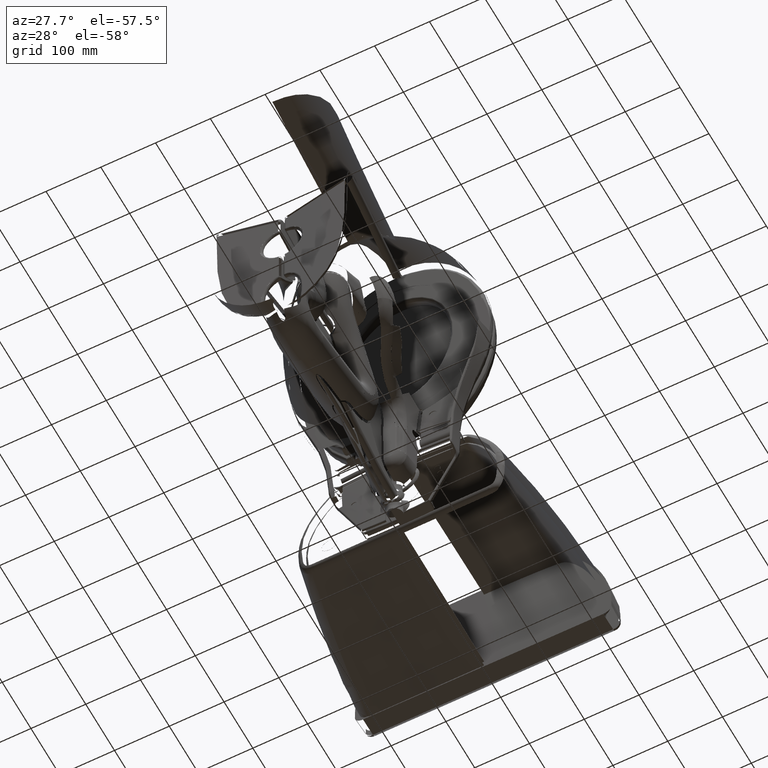
[diagram: clean part render]
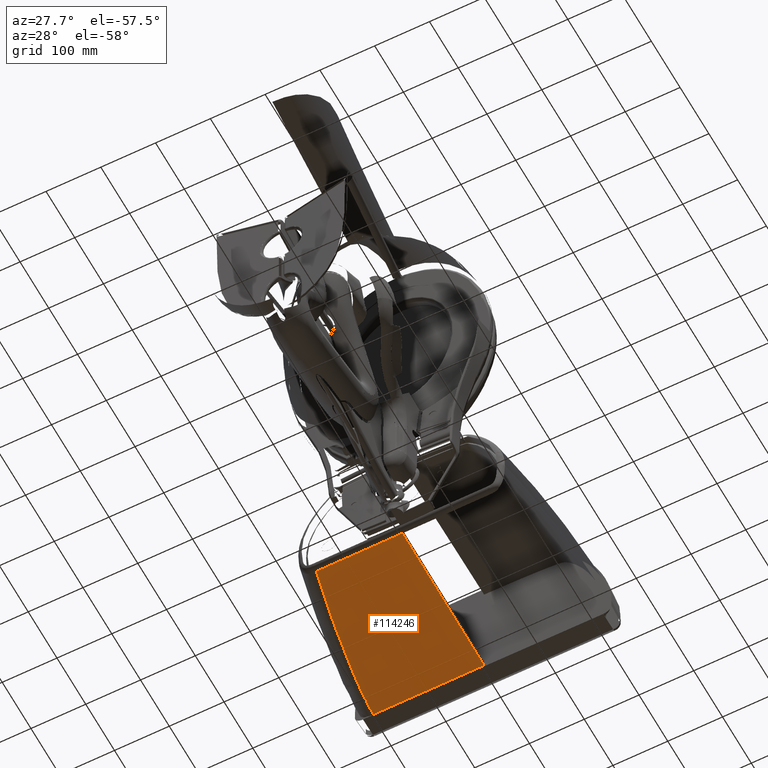
[diagram: same view with one face highlighted and labeled with its STEP entity id]
A machine part, auxiliary view. The second image highlights one B-rep face of the part: STEP entity #114246.
In plain terms, the highlighted face is a freeform B-spline surface patch.
Its self-contained STEP definition (entity closure, byte-faithful):
#1258 = CARTESIAN_POINT ( 'NONE',  ( -5.745885603488186900, 17.00485635692035700, 18.16221895906615200 ) ) ;
#2695 = CARTESIAN_POINT ( 'NONE',  ( -4.445654991937009200, 17.00483263071911800, 18.16228698294134200 ) ) ;
#3825 = CARTESIAN_POINT ( 'NONE',  ( -5.105228740610234800, 17.07958587400570800, 29.51484000306417200 ) ) ;
#4568 = CARTESIAN_POINT ( 'NONE',  ( -7.488457894578740300, 17.04384855036968500, 24.10449703455866200 ) ) ;
#8199 = EDGE_CURVE ( 'NONE', #115956, #52503, #73578, .T. ) ;
#8741 = VERTEX_POINT ( 'NONE', #18257 ) ;
#9297 = CARTESIAN_POINT ( 'NONE',  ( -7.880998421450457600, 17.06432094356663100, 27.23158359039958000 ) ) ;
#9944 = CARTESIAN_POINT ( 'NONE',  ( -6.770797272701595500, 17.02058685008506300, 20.48557013382816900 ) ) ;
#11142 = CARTESIAN_POINT ( 'NONE',  ( -5.745885603488186900, 17.00485635692035700, 18.16221895906615200 ) ) ;
#11219 = CARTESIAN_POINT ( 'NONE',  ( -8.012502503450623000, 17.07451215411894600, 28.76543578697327100 ) ) ;
#11867 = CARTESIAN_POINT ( 'NONE',  ( -7.670968661026520000, 17.05425048130058500, 25.68860870565679700 ) ) ;
#12597 = CARTESIAN_POINT ( 'NONE',  ( -3.765809946722479500, 17.07959623527604600, 29.51510557831523900 ) ) ;
#13129 = CARTESIAN_POINT ( 'NONE',  ( -5.105228740610234800, 17.07958587400570800, 29.51484000306417200 ) ) ;
#13764 = CARTESIAN_POINT ( 'NONE',  ( -5.438289049862201600, 17.07958359629561000, 29.51480895804234100 ) ) ;
#14249 = VERTEX_POINT ( 'NONE', #151566 ) ;
#14979 = CARTESIAN_POINT ( 'NONE',  ( -0.06687896458181102900, 17.06932436836968500, 27.95625287355866500 ) ) ;
#15724 = B_SPLINE_CURVE_WITH_KNOTS ( 'NONE', 3,
 ( #133289, #44619, #89293, #1258 ),
 .UNSPECIFIED., .F., .F.,
 ( 4, 4 ),
 ( 0.0000000000000000000, 1.000000000000000000 ),
 .UNSPECIFIED. ) ;
#16256 = CARTESIAN_POINT ( 'NONE',  ( -6.119923515578739700, 17.06897829236968500, 27.94906626855866300 ) ) ;
#16294 = CARTESIAN_POINT ( 'NONE',  ( -4.015895401200515000, 17.00482054659971000, 18.16228925990966300 ) ) ;
#17570 = CARTESIAN_POINT ( 'NONE',  ( -1.405595544511371000, 17.07961074713720600, 29.51541118164028200 ) ) ;
#18189 = CARTESIAN_POINT ( 'NONE',  ( -0.06687896458181102900, 17.00424887236968600, 18.09459187055866300 ) ) ;
#18257 = CARTESIAN_POINT ( 'NONE',  ( -5.105228740610234800, 17.07958587400570800, 29.51484000306417200 ) ) ;
#18400 = EDGE_CURVE ( 'NONE', #69012, #14249, #21287, .T. ) ;
#18690 = CARTESIAN_POINT ( 'NONE',  ( -6.098528283574805400, 17.07957958035413500, 29.51475757726733200 ) ) ;
#21287 = LINE ( 'NONE', #81353, #185556 ) ;
#24196 = CARTESIAN_POINT ( 'NONE',  ( -7.967707922192993800, 17.06999087537084100, 28.08921161678695800 ) ) ;
#24332 = CARTESIAN_POINT ( 'NONE',  ( -4.445654991937009200, 17.00483263071911800, 18.16228698294134200 ) ) ;
#24838 = CARTESIAN_POINT ( 'NONE',  ( -6.860822002281111900, 17.02358689651700600, 20.94137769674208000 ) ) ;
#25489 = CARTESIAN_POINT ( 'NONE',  ( -7.722945595609787400, 17.05651087891323300, 26.03685371509703100 ) ) ;
#26780 = CARTESIAN_POINT ( 'NONE',  ( -8.002324027528953100, 17.07334226069585300, 28.59089547124802500 ) ) ;
#27261 = EDGE_CURVE ( 'NONE', #131328, #91844, #50407, .T. ) ;
#28210 = EDGE_CURVE ( 'NONE', #8741, #99057, #142887, .T. ) ;
#29262 = CARTESIAN_POINT ( 'NONE',  ( -8.083546532578740300, 17.08004361036968500, 29.58397479555866000 ) ) ;
#30568 = CARTESIAN_POINT ( 'NONE',  ( -4.445654991937009200, 17.00483263071911800, 18.16228698294134200 ) ) ;
#31166 = CARTESIAN_POINT ( 'NONE',  ( -2.195673158581496100, 17.04381863336968600, 24.09178569555866300 ) ) ;
#32178 = ORIENTED_EDGE ( 'NONE', *, *, #82011, .T. ) ;
#32453 = CARTESIAN_POINT ( 'NONE',  ( -4.666479174578740600, 17.00435767336968600, 18.09189344355866400 ) ) ;
#34745 = CARTESIAN_POINT ( 'NONE',  ( -0.2933435966021378200, 17.00469883007757900, 18.16239439562665200 ) ) ;
#35025 = CARTESIAN_POINT ( 'NONE',  ( -5.273638384212601300, 17.00485122795950900, 18.16228501032756200 ) ) ;
#36605 = B_SPLINE_CURVE_WITH_KNOTS ( 'NONE', 3,
 ( #154405, #34745, #64515, #65782, #79385, #109132 ),
 .UNSPECIFIED., .F., .F.,
 ( 4, 2, 4 ),
 ( 0.0000000000000000000, 0.5000000000000000000, 1.000000000000000000 ),
 .UNSPECIFIED. ) ;
#36854 = CARTESIAN_POINT ( 'NONE',  ( -2.843087073148303600, 17.00477741046147900, 18.16233677059043900 ) ) ;
#37204 = B_SPLINE_CURVE_WITH_KNOTS ( 'NONE', 3,
 ( #46715, #120490, #16294, #30568 ),
 .UNSPECIFIED., .F., .F.,
 ( 4, 4 ),
 ( 0.0000000000000000000, 1.000000000000000000 ),
 .UNSPECIFIED. ) ;
#38357 = CARTESIAN_POINT ( 'NONE',  ( -7.077229060704723900, 17.07957670254903000, 29.51496517517442100 ) ) ;
#38782 = ORIENTED_EDGE ( 'NONE', *, *, #155968, .T. ) ;
#39090 = CARTESIAN_POINT ( 'NONE',  ( -7.674015345604384000, 17.05438117825597600, 25.70876332719498700 ) ) ;
#40022 = B_SPLINE_CURVE_WITH_KNOTS ( 'NONE', 3,
 ( #11142, #174177, #44117, #190947 ),
 .UNSPECIFIED., .F., .F.,
 ( 4, 4 ),
 ( 0.0000000000000000000, 1.000000000000000000 ),
 .UNSPECIFIED. ) ;
#40154 = CARTESIAN_POINT ( 'NONE',  ( -7.794624117994501100, 17.07957592509901400, 29.51512801007548200 ) ) ;
#40373 = CARTESIAN_POINT ( 'NONE',  ( -7.851020130192073200, 17.06269802322504200, 26.98438380350198800 ) ) ;
#40623 = CARTESIAN_POINT ( 'NONE',  ( -3.091848441450785000, 17.07960100749484100, 29.51519863416850200 ) ) ;
#44117 = CARTESIAN_POINT ( 'NONE',  ( -6.088016281528912700, 17.00485695559103800, 18.16206620447096000 ) ) ;
#44127 = CARTESIAN_POINT ( 'NONE',  ( -1.068346568581496100, 17.08006836336968700, 29.58450380555866100 ) ) ;
#44619 = CARTESIAN_POINT ( 'NONE',  ( -5.430260298228017900, 17.00485353672793200, 18.16225464713925300 ) ) ;
#45630 = CARTESIAN_POINT ( 'NONE',  ( -0.7351739101441201500, 17.07961189498515600, 29.51532772286060400 ) ) ;
#46715 = CARTESIAN_POINT ( 'NONE',  ( -3.167151420327951200, 17.00478955446312300, 18.16232571350157300 ) ) ;
#50407 = B_SPLINE_CURVE_WITH_KNOTS ( 'NONE', 3,
 ( #69938, #40154, #69292, #114536 ),
 .UNSPECIFIED., .F., .F.,
 ( 4, 4 ),
 ( 1.147597292338376400E-010, 1.000000000000000000 ),
 .UNSPECIFIED. ) ;
#51598 = DIRECTION ( 'NONE',  ( 0.0000000000000000000, -0.006598693453019954100, -0.9999782283853549900 ) ) ;
#51740 = CARTESIAN_POINT ( 'NONE',  ( -1.760245551162832500, 17.00473723970435100, 18.16236994236059100 ) ) ;
#52503 = VERTEX_POINT ( 'NONE', #59905 ) ;
#53253 = EDGE_CURVE ( 'NONE', #191172, #69012, #94937, .T. ) ;
#53361 = CARTESIAN_POINT ( 'NONE',  ( -2.417145245565434800, 17.07960554056090200, 29.51529980931544000 ) ) ;
#55184 = CARTESIAN_POINT ( 'NONE',  ( -0.2339197752306793300, 17.07961160856694600, 29.51519713060268700 ) ) ;
#55261 = CARTESIAN_POINT ( 'NONE',  ( -7.048986121561132000, 17.03012693187788100, 21.94518586502157100 ) ) ;
#55281 = CARTESIAN_POINT ( 'NONE',  ( -3.091848441450785000, 17.07960100749484100, 29.51519863416850200 ) ) ;
#55898 = CARTESIAN_POINT ( 'NONE',  ( -7.673743593173824700, 17.05436951388447400, 25.70696465038243500 ) ) ;
#55953 = ORIENTED_EDGE ( 'NONE', *, *, #79161, .T. ) ;
#56516 = CARTESIAN_POINT ( 'NONE',  ( -6.098528283574805400, 17.07957958035413500, 29.51475757726733200 ) ) ;
#59391 = CARTESIAN_POINT ( 'NONE',  ( -5.745885603488186900, 17.00485635692035700, 18.16221895906615200 ) ) ;
#59851 = EDGE_CURVE ( 'NONE', #14249, #135734, #36605, .T. ) ;
#59905 = CARTESIAN_POINT ( 'NONE',  ( -1.070185196407087600, 17.07961178884449500, 29.51543261489369400 ) ) ;
#60491 = CARTESIAN_POINT ( 'NONE',  ( -5.273638384212601300, 17.00485122795950900, 18.16228501032756200 ) ) ;
#61071 = VERTEX_POINT ( 'NONE', #157425 ) ;
#61185 = CARTESIAN_POINT ( 'NONE',  ( -1.070185196407087600, 17.07961178884449500, 29.51543261489369400 ) ) ;
#63488 = CARTESIAN_POINT ( 'NONE',  ( -0.8360732895814960700, 17.00426009336968400, 18.09451379255866100 ) ) ;
#64515 = CARTESIAN_POINT ( 'NONE',  ( -0.5301177562665987400, 17.00470298104027800, 18.16239371294615200 ) ) ;
#65782 = CARTESIAN_POINT ( 'NONE',  ( -1.022002230284835300, 17.00471437439852500, 18.16238731225961400 ) ) ;
#66164 = CARTESIAN_POINT ( 'NONE',  ( -6.427429914537059500, 17.07957828908893900, 29.51482006251485000 ) ) ;
#68224 = CARTESIAN_POINT ( 'NONE',  ( -7.537566201008713700, 17.04873625330973400, 24.83576600730443200 ) ) ;
#68869 = CARTESIAN_POINT ( 'NONE',  ( -8.034414974880220900, 17.07824002244226200, 29.31847076597005900 ) ) ;
#69012 = VERTEX_POINT ( 'NONE', #165795 ) ;
#69292 = CARTESIAN_POINT ( 'NONE',  ( -7.476043738960561000, 17.07957607031368900, 29.51507194737569900 ) ) ;
#69938 = CARTESIAN_POINT ( 'NONE',  ( -8.037146221495092400, 17.07957570675753100, 29.51512198553970000 ) ) ;
#70159 = CARTESIAN_POINT ( 'NONE',  ( -7.684140703020384300, 17.05481720793212500, 25.77598508775508500 ) ) ;
#70814 = CARTESIAN_POINT ( 'NONE',  ( -7.679633494649087800, 17.05462261583199900, 25.74599052682565400 ) ) ;
#71957 = VERTEX_POINT ( 'NONE', #59391 ) ;
#73439 = CARTESIAN_POINT ( 'NONE',  ( -3.091848441450785000, 17.07960100749484100, 29.51519863416850200 ) ) ;
#73578 = B_SPLINE_CURVE_WITH_KNOTS ( 'NONE', 3,
 ( #122390, #181204, #17570, #77138 ),
 .UNSPECIFIED., .F., .F.,
 ( 4, 4 ),
 ( 0.4911602344710152000, 0.5111401224711341600 ),
 .UNSPECIFIED. ) ;
#74139 = B_SPLINE_CURVE_WITH_KNOTS ( 'NONE', 3,
 ( #55281, #186555, #53361, #143296 ),
 .UNSPECIFIED., .F., .F.,
 ( 4, 4 ),
 ( 0.0000000000000000000, 1.000000000000000000 ),
 .UNSPECIFIED. ) ;
#74554 = CARTESIAN_POINT ( 'NONE',  ( -4.111335315578740400, 17.06913095136968600, 27.95227272855866100 ) ) ;
#75867 = ORIENTED_EDGE ( 'NONE', *, *, #18400, .T. ) ;
#77138 = CARTESIAN_POINT ( 'NONE',  ( -1.070185196407087600, 17.07961178884449500, 29.51543261489369400 ) ) ;
#79138 = CARTESIAN_POINT ( 'NONE',  ( -7.077229060704723900, 17.07957670254903000, 29.51496517517442100 ) ) ;
#79161 = EDGE_CURVE ( 'NONE', #85100, #71957, #15724, .T. ) ;
#79315 = VERTEX_POINT ( 'NONE', #18690 ) ;
#79385 = CARTESIAN_POINT ( 'NONE',  ( -1.276890082345344400, 17.00472161968819100, 18.16238152892350800 ) ) ;
#79969 = EDGE_CURVE ( 'NONE', #52503, #191172, #142646, .T. ) ;
#81353 = CARTESIAN_POINT ( 'NONE',  ( -0.06687896458181102900, 17.04197438686402700, 23.81158604764673100 ) ) ;
#82011 = EDGE_CURVE ( 'NONE', #135734, #61071, #117650, .T. ) ;
#83098 = CARTESIAN_POINT ( 'NONE',  ( -7.147084831177543200, 17.03366637773393300, 22.49319870744890100 ) ) ;
#83740 = CARTESIAN_POINT ( 'NONE',  ( -7.430165758920252600, 17.04446866729238900, 24.17287791457995300 ) ) ;
#84379 = CARTESIAN_POINT ( 'NONE',  ( -7.673934742357254800, 17.05437771840272600, 25.70822981018018200 ) ) ;
#85019 = CARTESIAN_POINT ( 'NONE',  ( -7.703431576096167400, 17.05565412009971400, 25.90494535219764000 ) ) ;
#85077 = CARTESIAN_POINT ( 'NONE',  ( -8.037146221495092400, 17.07957570675753100, 29.51512198553970000 ) ) ;
#85100 = VERTEX_POINT ( 'NONE', #60491 ) ;
#87219 = ORIENTED_EDGE ( 'NONE', *, *, #108232, .T. ) ;
#88162 = CARTESIAN_POINT ( 'NONE',  ( -1.074724558581496200, 17.06931326636968600, 27.95604035455866300 ) ) ;
#88299 = ORIENTED_EDGE ( 'NONE', *, *, #53253, .T. ) ;
#88858 = VERTEX_POINT ( 'NONE', #40623 ) ;
#89293 = CARTESIAN_POINT ( 'NONE',  ( -5.587640161974143800, 17.00485527992682600, 18.16223186679132700 ) ) ;
#89596 = CARTESIAN_POINT ( 'NONE',  ( -4.101598690866140400, 17.07959374279574800, 29.51505663491061800 ) ) ;
#89917 = ORIENTED_EDGE ( 'NONE', *, *, #132789, .T. ) ;
#90055 = CARTESIAN_POINT ( 'NONE',  ( -7.436193634578740100, 17.08004390636968500, 29.58398348955866200 ) ) ;
#91346 = VERTEX_POINT ( 'NONE', #24332 ) ;
#91586 = CARTESIAN_POINT ( 'NONE',  ( -0.5680337445122037900, 17.07961175294178300, 29.51527119183306900 ) ) ;
#91636 = B_SPLINE_CURVE_WITH_KNOTS ( 'NONE', 3,
 ( #79138, #139921, #66164, #95914 ),
 .UNSPECIFIED., .F., .F.,
 ( 4, 4 ),
 ( 0.0000000000000000000, 1.000000000000000000 ),
 .UNSPECIFIED. ) ;
#91844 = VERTEX_POINT ( 'NONE', #38357 ) ;
#91973 = CARTESIAN_POINT ( 'NONE',  ( -0.3232050515818110600, 17.00425177636968500, 18.09459449355866300 ) ) ;
#93270 = CARTESIAN_POINT ( 'NONE',  ( -3.118136645581496500, 17.00432036036968600, 18.09316593455866200 ) ) ;
#94937 = B_SPLINE_CURVE_WITH_KNOTS ( 'NONE', 3,
 ( #144486, #187754, #55184, #188382 ),
 .UNSPECIFIED., .F., .F.,
 ( 4, 4 ),
 ( 0.0000000000000000000, 1.000000000000000000 ),
 .UNSPECIFIED. ) ;
#95914 = CARTESIAN_POINT ( 'NONE',  ( -6.098528283574805400, 17.07957958035413500, 29.51475757726733200 ) ) ;
#96820 = B_SPLINE_CURVE_WITH_KNOTS ( 'NONE', 3,
 ( #56516, #161297, #13764, #13129 ),
 .UNSPECIFIED., .F., .F.,
 ( 4, 4 ),
 ( 0.0000000000000000000, 1.000000000000000000 ),
 .UNSPECIFIED. ) ;
#97997 = CARTESIAN_POINT ( 'NONE',  ( -7.673928544616647000, 17.05437745237240700, 25.70818878766844800 ) ) ;
#98529 = ORIENTED_EDGE ( 'NONE', *, *, #113335, .T. ) ;
#98628 = CARTESIAN_POINT ( 'NONE',  ( -6.260723287990726900, 17.00485596758765500, 18.16200997239452500 ) ) ;
#99057 = VERTEX_POINT ( 'NONE', #89596 ) ;
#99268 = CARTESIAN_POINT ( 'NONE',  ( -7.794862723375751500, 17.05983925338554400, 26.54770930194519700 ) ) ;
#99904 = CARTESIAN_POINT ( 'NONE',  ( -7.939319878855859400, 17.06796741130802500, 27.78399859972491000 ) ) ;
#102061 = ORIENTED_EDGE ( 'NONE', *, *, #28210, .T. ) ;
#103022 = CARTESIAN_POINT ( 'NONE',  ( -8.066921905578741600, 17.06891690436968600, 27.94769209755865800 ) ) ;
#104925 = CARTESIAN_POINT ( 'NONE',  ( -0.4028728975814960800, 17.06932474136968400, 27.95626708855866500 ) ) ;
#105161 = ORIENTED_EDGE ( 'NONE', *, *, #168670, .T. ) ;
#106193 = CARTESIAN_POINT ( 'NONE',  ( -6.842699278578740200, 17.04384698836968700, 24.10388224555866500 ) ) ;
#106840 = CARTESIAN_POINT ( 'NONE',  ( -5.579418084578740900, 17.04384152636968600, 24.10136946955866200 ) ) ;
#106995 = B_SPLINE_SURFACE_WITH_KNOTS ( 'NONE', 3, 3, ( 
 ( #163142, #132154, #44127, #161883, #163775, #176735, #90055, #29262 ),
 ( #14979, #104925, #88162, #118537, #74554, #16256, #119803, #103022 ),
 ( #132785, #133420, #162522, #31166, #177358, #106840, #106193, #4568 ),
 ( #136623, #179908, #181189, #108118, #137262, #137899, #152125, #150213 ),
 ( #18189, #91973, #63488, #166957, #93270, #32453, #135983, #179270 ) ),
 .UNSPECIFIED., .F., .F., .F.,
 ( 4, 1, 4 ),
 ( 4, 1, 1, 1, 1, 4 ),
 ( 0.008759419863361999100, 0.4161931364479999900, 0.9727641616019999700 ),
 ( 0.3703211415280000000, 0.3903010297819999900, 0.4102809180370000100, 0.4502406945460000200, 0.4902004710540000000, 0.5311200109429999900 ),
 .UNSPECIFIED. ) ;
#108118 = CARTESIAN_POINT ( 'NONE',  ( -2.009015169581496200, 17.01893474136968700, 20.29178447955866100 ) ) ;
#108232 = EDGE_CURVE ( 'NONE', #99057, #88858, #164724, .T. ) ;
#109132 = CARTESIAN_POINT ( 'NONE',  ( -1.541457046448031500, 17.00473016937008100, 18.16237518548229000 ) ) ;
#112850 = CARTESIAN_POINT ( 'NONE',  ( -6.517281166980181300, 17.01240353529224000, 19.25561679354743200 ) ) ;
#112854 = B_SPLINE_CURVE_WITH_KNOTS ( 'NONE', 3,
 ( #98628, #186535, #112850, #9944, #24838, #55261, #83098, #157474, #142643, #83740, #172957, #128369, #68224, #129006, #130297, #174245, #113474, #11867, #142004, #55898, #187820, #97997, #84379, #159395, #39090, #188454, #158738, #70814, #70159, #85019, #25489, #129653, #99268, #40373, #9297, #99904, #24196, #26780, #11219, #114761, #68869, #173594 ),
 .UNSPECIFIED., .F., .F.,
 ( 4, 2, 2, 2, 2, 2, 2, 2, 1, 1, 1, 1, 1, 2, 1, 1, 1, 1, 1, 2, 2, 2, 2, 2, 2, 4 ),
 ( 1.071352918710732900E-009, 0.2500000007327657400, 0.3750000005634711600, 0.5000000003941766900, 0.5625000003095298500, 0.5937500002672063700, 0.6250000002248830000, 0.6562500001825596300, 0.6640625001719789900, 0.6660156251693339900, 0.6665039064186731900, 0.6666259767310078700, 0.6666564943090910200, 0.6666717530981326500, 0.6666870118871742700, 0.6667480470433342400, 0.6669921876679769700, 0.6679687501665480000, 0.6718750001608357900, 0.6875000001379838500, 0.7500000000465807400, 0.8124999999551776300, 0.8749999998637746400, 0.9374999997723716400, 0.9687499997266700900, 0.9999999996809685300 ),
 .UNSPECIFIED. ) ;
#113335 = EDGE_CURVE ( 'NONE', #79315, #8741, #96820, .T. ) ;
#113411 = ORIENTED_EDGE ( 'NONE', *, *, #167166, .T. ) ;
#113474 = CARTESIAN_POINT ( 'NONE',  ( -7.662080772843079800, 17.05387014340034200, 25.62994718557041900 ) ) ;
#114246 = ADVANCED_FACE ( 'NONE', ( #130530 ), #106995, .T. ) ;
#114536 = CARTESIAN_POINT ( 'NONE',  ( -7.077229060704723900, 17.07957670254903000, 29.51496517517442100 ) ) ;
#114761 = CARTESIAN_POINT ( 'NONE',  ( -8.028547056591854400, 17.07696103670156900, 29.12922347957094600 ) ) ;
#115956 = VERTEX_POINT ( 'NONE', #157498 ) ;
#117650 = B_SPLINE_CURVE_WITH_KNOTS ( 'NONE', 3,
 ( #156524, #51740, #142308, #155893, #36854, #142947 ),
 .UNSPECIFIED., .F., .F.,
 ( 4, 2, 4 ),
 ( 0.0000000000000000000, 0.5000000000000002200, 1.000000000000000000 ),
 .UNSPECIFIED. ) ;
#118537 = CARTESIAN_POINT ( 'NONE',  ( -2.425334188581496500, 17.06925325736968800, 27.95481004455866600 ) ) ;
#119685 = EDGE_CURVE ( 'NONE', #61071, #91346, #37204, .T. ) ;
#119803 = CARTESIAN_POINT ( 'NONE',  ( -7.423227765578739800, 17.06892139536968900, 27.94782595155866600 ) ) ;
#120490 = CARTESIAN_POINT ( 'NONE',  ( -3.590527706146503700, 17.00480546916447000, 18.16231851411943800 ) ) ;
#122390 = CARTESIAN_POINT ( 'NONE',  ( -2.079873542462599400, 17.07960740021691100, 29.51534177194371000 ) ) ;
#123688 = CARTESIAN_POINT ( 'NONE',  ( -4.995451938194819700, 17.00484662265173700, 18.16226612685218500 ) ) ;
#128369 = CARTESIAN_POINT ( 'NONE',  ( -7.510419264563809700, 17.04764990326830100, 24.66719251494657800 ) ) ;
#129006 = CARTESIAN_POINT ( 'NONE',  ( -7.592149979108160800, 17.05094919111525100, 25.17862361071258800 ) ) ;
#129653 = CARTESIAN_POINT ( 'NONE',  ( -7.768648088550045300, 17.05860346984714900, 26.35823633279177300 ) ) ;
#130297 = CARTESIAN_POINT ( 'NONE',  ( -7.619561148559035300, 17.05207576121432200, 25.35291006472107600 ) ) ;
#130393 = CARTESIAN_POINT ( 'NONE',  ( -4.101598690866140400, 17.07959374279574800, 29.51505663491061800 ) ) ;
#130530 = FACE_OUTER_BOUND ( 'NONE', #144008, .T. ) ;
#131328 = VERTEX_POINT ( 'NONE', #85077 ) ;
#132154 = CARTESIAN_POINT ( 'NONE',  ( -0.4008854635814960700, 17.08006905736968400, 29.58451820355866600 ) ) ;
#132467 = ORIENTED_EDGE ( 'NONE', *, *, #59851, .T. ) ;
#132785 = CARTESIAN_POINT ( 'NONE',  ( -0.06687896458181102900, 17.04380634536968500, 24.08920441855865800 ) ) ;
#132789 = EDGE_CURVE ( 'NONE', #91346, #85100, #187419, .T. ) ;
#133289 = CARTESIAN_POINT ( 'NONE',  ( -5.273638384212601300, 17.00485122795950900, 18.16228501032756200 ) ) ;
#133420 = CARTESIAN_POINT ( 'NONE',  ( -0.3708263385818110200, 17.04380775936968500, 24.08924455255866400 ) ) ;
#134307 = CARTESIAN_POINT ( 'NONE',  ( -0.9024800822584024800, 17.07961190054456300, 29.51538139870533000 ) ) ;
#135734 = VERTEX_POINT ( 'NONE', #151115 ) ;
#135983 = CARTESIAN_POINT ( 'NONE',  ( -5.731624014578740900, 17.00436518636968900, 18.09122537155866400 ) ) ;
#136623 = CARTESIAN_POINT ( 'NONE',  ( -0.06687896458181102900, 17.01877190136968600, 20.29543846455866400 ) ) ;
#137262 = CARTESIAN_POINT ( 'NONE',  ( -3.389388675581496400, 17.01918427236968900, 20.28522992955866000 ) ) ;
#137899 = CARTESIAN_POINT ( 'NONE',  ( -5.072393778578740100, 17.01947659036968500, 20.27610436155865900 ) ) ;
#138411 = CARTESIAN_POINT ( 'NONE',  ( -4.437387234171054300, 17.07959109170000300, 29.51498398734909400 ) ) ;
#139921 = CARTESIAN_POINT ( 'NONE',  ( -6.753894483064651200, 17.07957728043115600, 29.51488824126127900 ) ) ;
#142004 = CARTESIAN_POINT ( 'NONE',  ( -7.673188704875689900, 17.05434570062158200, 25.70329253869758500 ) ) ;
#142308 = CARTESIAN_POINT ( 'NONE',  ( -2.004800029935871500, 17.00474586300129700, 18.16236606735936100 ) ) ;
#142621 = ORIENTED_EDGE ( 'NONE', *, *, #79969, .T. ) ;
#142643 = CARTESIAN_POINT ( 'NONE',  ( -7.351173722514271700, 17.04138261941679000, 23.69286497626776400 ) ) ;
#142646 = B_SPLINE_CURVE_WITH_KNOTS ( 'NONE', 3,
 ( #61185, #134307, #45630, #91586 ),
 .UNSPECIFIED., .F., .F.,
 ( 4, 4 ),
 ( 0.0000000000000000000, 1.000000000000000000 ),
 .UNSPECIFIED. ) ;
#142887 = B_SPLINE_CURVE_WITH_KNOTS ( 'NONE', 3,
 ( #3825, #167472, #138411, #165570 ),
 .UNSPECIFIED., .F., .F.,
 ( 4, 4 ),
 ( 0.0000000000000000000, 1.000000000000000000 ),
 .UNSPECIFIED. ) ;
#142947 = CARTESIAN_POINT ( 'NONE',  ( -3.167151420327951200, 17.00478955446312300, 18.16232571350157300 ) ) ;
#143296 = CARTESIAN_POINT ( 'NONE',  ( -2.079873542462599400, 17.07960740021691100, 29.51534177194371000 ) ) ;
#144008 = EDGE_LOOP ( 'NONE', ( #55953, #161004, #105161, #167984, #113411, #98529, #102061, #87219, #38782, #170274, #142621, #88299, #75867, #132467, #32178, #183463, #89917 ) ) ;
#144486 = CARTESIAN_POINT ( 'NONE',  ( -0.5680337445122037900, 17.07961175294178300, 29.51527119183306900 ) ) ;
#150213 = CARTESIAN_POINT ( 'NONE',  ( -6.811836198578740600, 17.01955515636968700, 20.26976526955866100 ) ) ;
#151115 = CARTESIAN_POINT ( 'NONE',  ( -1.541457046448031500, 17.00473016937008100, 18.16237518548229000 ) ) ;
#151566 = CARTESIAN_POINT ( 'NONE',  ( -0.06687896458181102900, 17.00469628981705100, 18.16239433556230400 ) ) ;
#152125 = CARTESIAN_POINT ( 'NONE',  ( -6.221356776578740100, 17.01956465336968400, 20.27130399255866400 ) ) ;
#154405 = CARTESIAN_POINT ( 'NONE',  ( -0.06687896458181102900, 17.00469628981705100, 18.16239433556230400 ) ) ;
#155893 = CARTESIAN_POINT ( 'NONE',  ( -2.546232574233255400, 17.00476593771918800, 18.16234972326135400 ) ) ;
#155968 = EDGE_CURVE ( 'NONE', #88858, #115956, #74139, .T. ) ;
#156524 = CARTESIAN_POINT ( 'NONE',  ( -1.541457046448031500, 17.00473016937008100, 18.16237518548229000 ) ) ;
#157425 = CARTESIAN_POINT ( 'NONE',  ( -3.167151420327951200, 17.00478955446312300, 18.16232571350157300 ) ) ;
#157474 = CARTESIAN_POINT ( 'NONE',  ( -7.299481543778689700, 17.03940024643483400, 23.38431574610454100 ) ) ;
#157498 = CARTESIAN_POINT ( 'NONE',  ( -2.079873542462599400, 17.07960740021691100, 29.51534177194371000 ) ) ;
#158738 = CARTESIAN_POINT ( 'NONE',  ( -7.675326280255983000, 17.05443746565195800, 25.71744279454108200 ) ) ;
#159395 = CARTESIAN_POINT ( 'NONE',  ( -7.673950237953788700, 17.05437838353421400, 25.70833237502293000 ) ) ;
#161004 = ORIENTED_EDGE ( 'NONE', *, *, #191523, .T. ) ;
#161297 = CARTESIAN_POINT ( 'NONE',  ( -5.769627359228191000, 17.07958144844387500, 29.51478045046022200 ) ) ;
#161883 = CARTESIAN_POINT ( 'NONE',  ( -2.416294605581496200, 17.08006464836968500, 29.58442589855866700 ) ) ;
#162522 = CARTESIAN_POINT ( 'NONE',  ( -0.9792643925814961100, 17.04381099936968300, 24.08970248055866000 ) ) ;
#163142 = CARTESIAN_POINT ( 'NONE',  ( -0.06687896458181102900, 17.08006902036968800, 29.58451733955866600 ) ) ;
#163775 = CARTESIAN_POINT ( 'NONE',  ( -4.105479243578740200, 17.08005702836968700, 29.58426530955866300 ) ) ;
#164724 = B_SPLINE_CURVE_WITH_KNOTS ( 'NONE', 3,
 ( #130393, #12597, #176254, #73439 ),
 .UNSPECIFIED., .F., .F.,
 ( 4, 4 ),
 ( 0.0000000000000000000, 1.000000000000000000 ),
 .UNSPECIFIED. ) ;
#165570 = CARTESIAN_POINT ( 'NONE',  ( -4.101598690866140400, 17.07959374279574800, 29.51505663491061800 ) ) ;
#165795 = CARTESIAN_POINT ( 'NONE',  ( -0.06687896458181102900, 17.07961131236382400, 29.51515542055869500 ) ) ;
#166957 = CARTESIAN_POINT ( 'NONE',  ( -1.852025476581496300, 17.00428367036968400, 18.09408083755866100 ) ) ;
#167166 = EDGE_CURVE ( 'NONE', #91844, #79315, #91636, .T. ) ;
#167472 = CARTESIAN_POINT ( 'NONE',  ( -4.772169054682939800, 17.07958841871814600, 29.51491074281840800 ) ) ;
#167984 = ORIENTED_EDGE ( 'NONE', *, *, #27261, .T. ) ;
#168670 = EDGE_CURVE ( 'NONE', #175520, #131328, #112854, .T. ) ;
#170274 = ORIENTED_EDGE ( 'NONE', *, *, #8199, .T. ) ;
#172957 = CARTESIAN_POINT ( 'NONE',  ( -7.456740438374744400, 17.04551612407897900, 24.33574653093245400 ) ) ;
#173594 = CARTESIAN_POINT ( 'NONE',  ( -8.037146221495092400, 17.07957570675753100, 29.51512198553970000 ) ) ;
#174177 = CARTESIAN_POINT ( 'NONE',  ( -5.916448672776243500, 17.00485704363669700, 18.16213682078280900 ) ) ;
#174245 = CARTESIAN_POINT ( 'NONE',  ( -7.653588915681448100, 17.05350996681602300, 25.57436014781549700 ) ) ;
#175520 = VERTEX_POINT ( 'NONE', #181254 ) ;
#176254 = CARTESIAN_POINT ( 'NONE',  ( -3.429014545404448300, 17.07959870686233100, 29.51515394501260300 ) ) ;
#176735 = CARTESIAN_POINT ( 'NONE',  ( -6.124645203578740600, 17.08004748436968600, 29.58406226255866400 ) ) ;
#177358 = CARTESIAN_POINT ( 'NONE',  ( -3.719613151581496500, 17.04382942136968600, 24.09593484455866600 ) ) ;
#179270 = CARTESIAN_POINT ( 'NONE',  ( -6.282316193578740400, 17.00436119636968600, 18.09101194355866200 ) ) ;
#179908 = CARTESIAN_POINT ( 'NONE',  ( -0.3452014505818110600, 17.01877478836968600, 20.29545866655866200 ) ) ;
#180575 = CARTESIAN_POINT ( 'NONE',  ( -0.5680337445122037900, 17.07961175294178300, 29.51527119183306900 ) ) ;
#181189 = CARTESIAN_POINT ( 'NONE',  ( -0.9023363065814961100, 17.01880446536968700, 20.29488299755865900 ) ) ;
#181204 = CARTESIAN_POINT ( 'NONE',  ( -1.742601917259828200, 17.07960923424230200, 29.51537986714938500 ) ) ;
#181254 = CARTESIAN_POINT ( 'NONE',  ( -6.260723287990726900, 17.00485596758765500, 18.16200997239452500 ) ) ;
#182475 = CARTESIAN_POINT ( 'NONE',  ( -4.719659648873142800, 17.00484023570370700, 18.16227105430782300 ) ) ;
#183463 = ORIENTED_EDGE ( 'NONE', *, *, #119685, .T. ) ;
#185556 = VECTOR ( 'NONE', #51598, 39.37007874015748900 ) ;
#186535 = CARTESIAN_POINT ( 'NONE',  ( -6.370511833639028500, 17.00803588031596900, 18.61892390883016200 ) ) ;
#186555 = CARTESIAN_POINT ( 'NONE',  ( -2.754682201695529500, 17.07960335965498900, 29.51525106356378500 ) ) ;
#187419 = B_SPLINE_CURVE_WITH_KNOTS ( 'NONE', 3,
 ( #2695, #182475, #123688, #35025 ),
 .UNSPECIFIED., .F., .F.,
 ( 4, 4 ),
 ( 0.0000000000000000000, 1.000000000000000000 ),
 .UNSPECIFIED. ) ;
#187754 = CARTESIAN_POINT ( 'NONE',  ( -0.4008937414245362700, 17.07961174904369300, 29.51523558971601300 ) ) ;
#187820 = CARTESIAN_POINT ( 'NONE',  ( -7.673888912993883000, 17.05437575124363300, 25.70792646944264700 ) ) ;
#188382 = CARTESIAN_POINT ( 'NONE',  ( -0.06687896458181102900, 17.07961131236382400, 29.51515542055869500 ) ) ;
#188454 = CARTESIAN_POINT ( 'NONE',  ( -7.674276194492460200, 17.05439237585505900, 25.71049001320532700 ) ) ;
#190947 = CARTESIAN_POINT ( 'NONE',  ( -6.260723287990726900, 17.00485596758765500, 18.16200997239452500 ) ) ;
#191172 = VERTEX_POINT ( 'NONE', #180575 ) ;
#191523 = EDGE_CURVE ( 'NONE', #71957, #175520, #40022, .T. ) ;